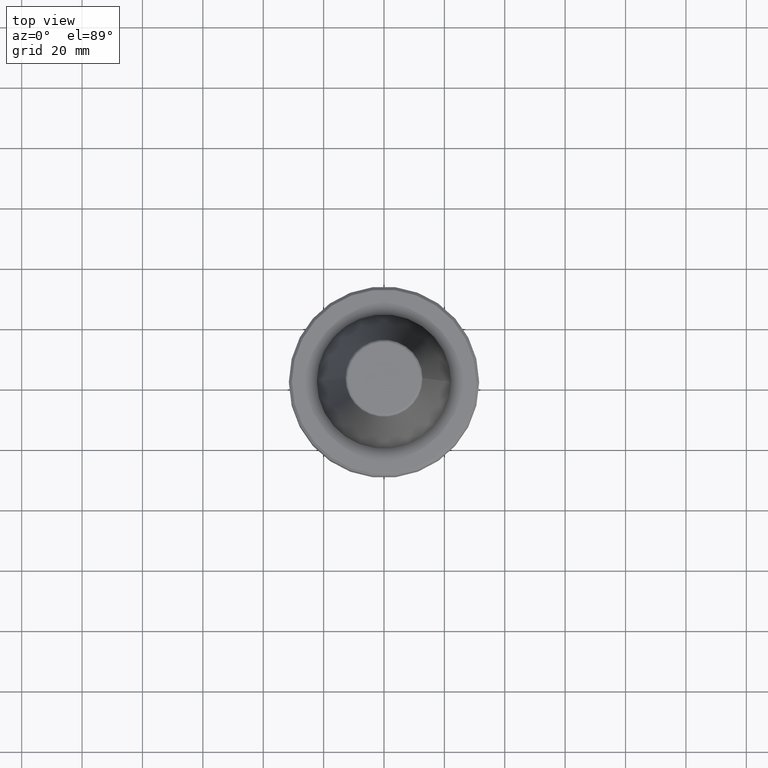
[diagram: clean part render]
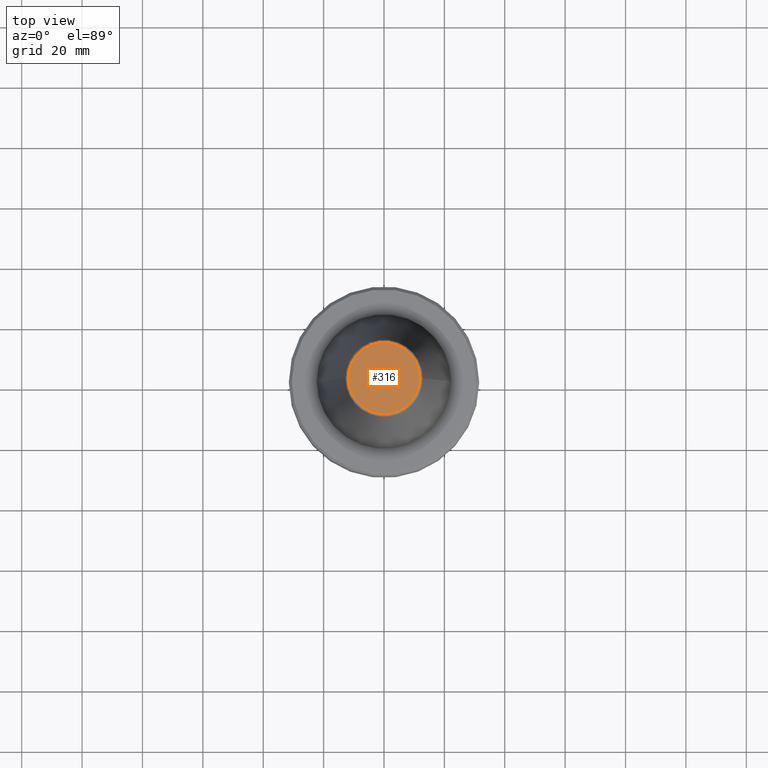
[diagram: same view with one face highlighted and labeled with its STEP entity id]
A machine part, top view. The second image highlights one B-rep face of the part: STEP entity #316.
In plain terms, the highlighted planar face has unit normal (0, -0, 1).
Its self-contained STEP definition (entity closure, byte-faithful):
#2 = CARTESIAN_POINT ( 'NONE',  ( 11.82266672057007100, 0.0000000000000000000, 65.40000000000000600 ) ) ;
#28 = CARTESIAN_POINT ( 'NONE',  ( -11.82266672057007100, 1.508450503654657300E-015, 65.40000000000000600 ) ) ;
#48 = EDGE_CURVE ( 'NONE', #169, #168, #273, .T. ) ;
#168 = VERTEX_POINT ( 'NONE', #2 ) ;
#169 = VERTEX_POINT ( 'NONE', #28 ) ;
#236 = AXIS2_PLACEMENT_3D ( 'NONE', #851, #256, #944 ) ;
#237 = CARTESIAN_POINT ( 'NONE',  ( 0.0000000000000000000, 0.0000000000000000000, 65.40000000000000600 ) ) ;
#256 = DIRECTION ( 'NONE',  ( -0.0000000000000000000, -0.0000000000000000000, 1.000000000000000000 ) ) ;
#273 = CIRCLE ( 'NONE', #363, 11.82266672057007100 ) ;
#316 = ADVANCED_FACE ( 'NONE', ( #365 ), #1235, .T. ) ;
#363 = AXIS2_PLACEMENT_3D ( 'NONE', #692, #1119, #1000 ) ;
#365 = FACE_OUTER_BOUND ( 'NONE', #372, .T. ) ;
#369 = DIRECTION ( 'NONE',  ( 1.000000000000000000, 0.0000000000000000000, 0.0000000000000000000 ) ) ;
#372 = EDGE_LOOP ( 'NONE', ( #491, #458 ) ) ;
#458 = ORIENTED_EDGE ( 'NONE', *, *, #48, .T. ) ;
#491 = ORIENTED_EDGE ( 'NONE', *, *, #1117, .T. ) ;
#692 = CARTESIAN_POINT ( 'NONE',  ( 0.0000000000000000000, 0.0000000000000000000, 65.40000000000000600 ) ) ;
#794 = AXIS2_PLACEMENT_3D ( 'NONE', #237, #1128, #369 ) ;
#833 = CIRCLE ( 'NONE', #236, 11.82266672057007100 ) ;
#851 = CARTESIAN_POINT ( 'NONE',  ( 0.0000000000000000000, 0.0000000000000000000, 65.40000000000000600 ) ) ;
#944 = DIRECTION ( 'NONE',  ( 1.000000000000000000, 0.0000000000000000000, 0.0000000000000000000 ) ) ;
#1000 = DIRECTION ( 'NONE',  ( 1.000000000000000000, 0.0000000000000000000, 0.0000000000000000000 ) ) ;
#1117 = EDGE_CURVE ( 'NONE', #168, #169, #833, .T. ) ;
#1119 = DIRECTION ( 'NONE',  ( -0.0000000000000000000, -0.0000000000000000000, 1.000000000000000000 ) ) ;
#1128 = DIRECTION ( 'NONE',  ( 0.0000000000000000000, -0.0000000000000000000, 1.000000000000000000 ) ) ;
#1235 = PLANE ( 'NONE',  #794 ) ;